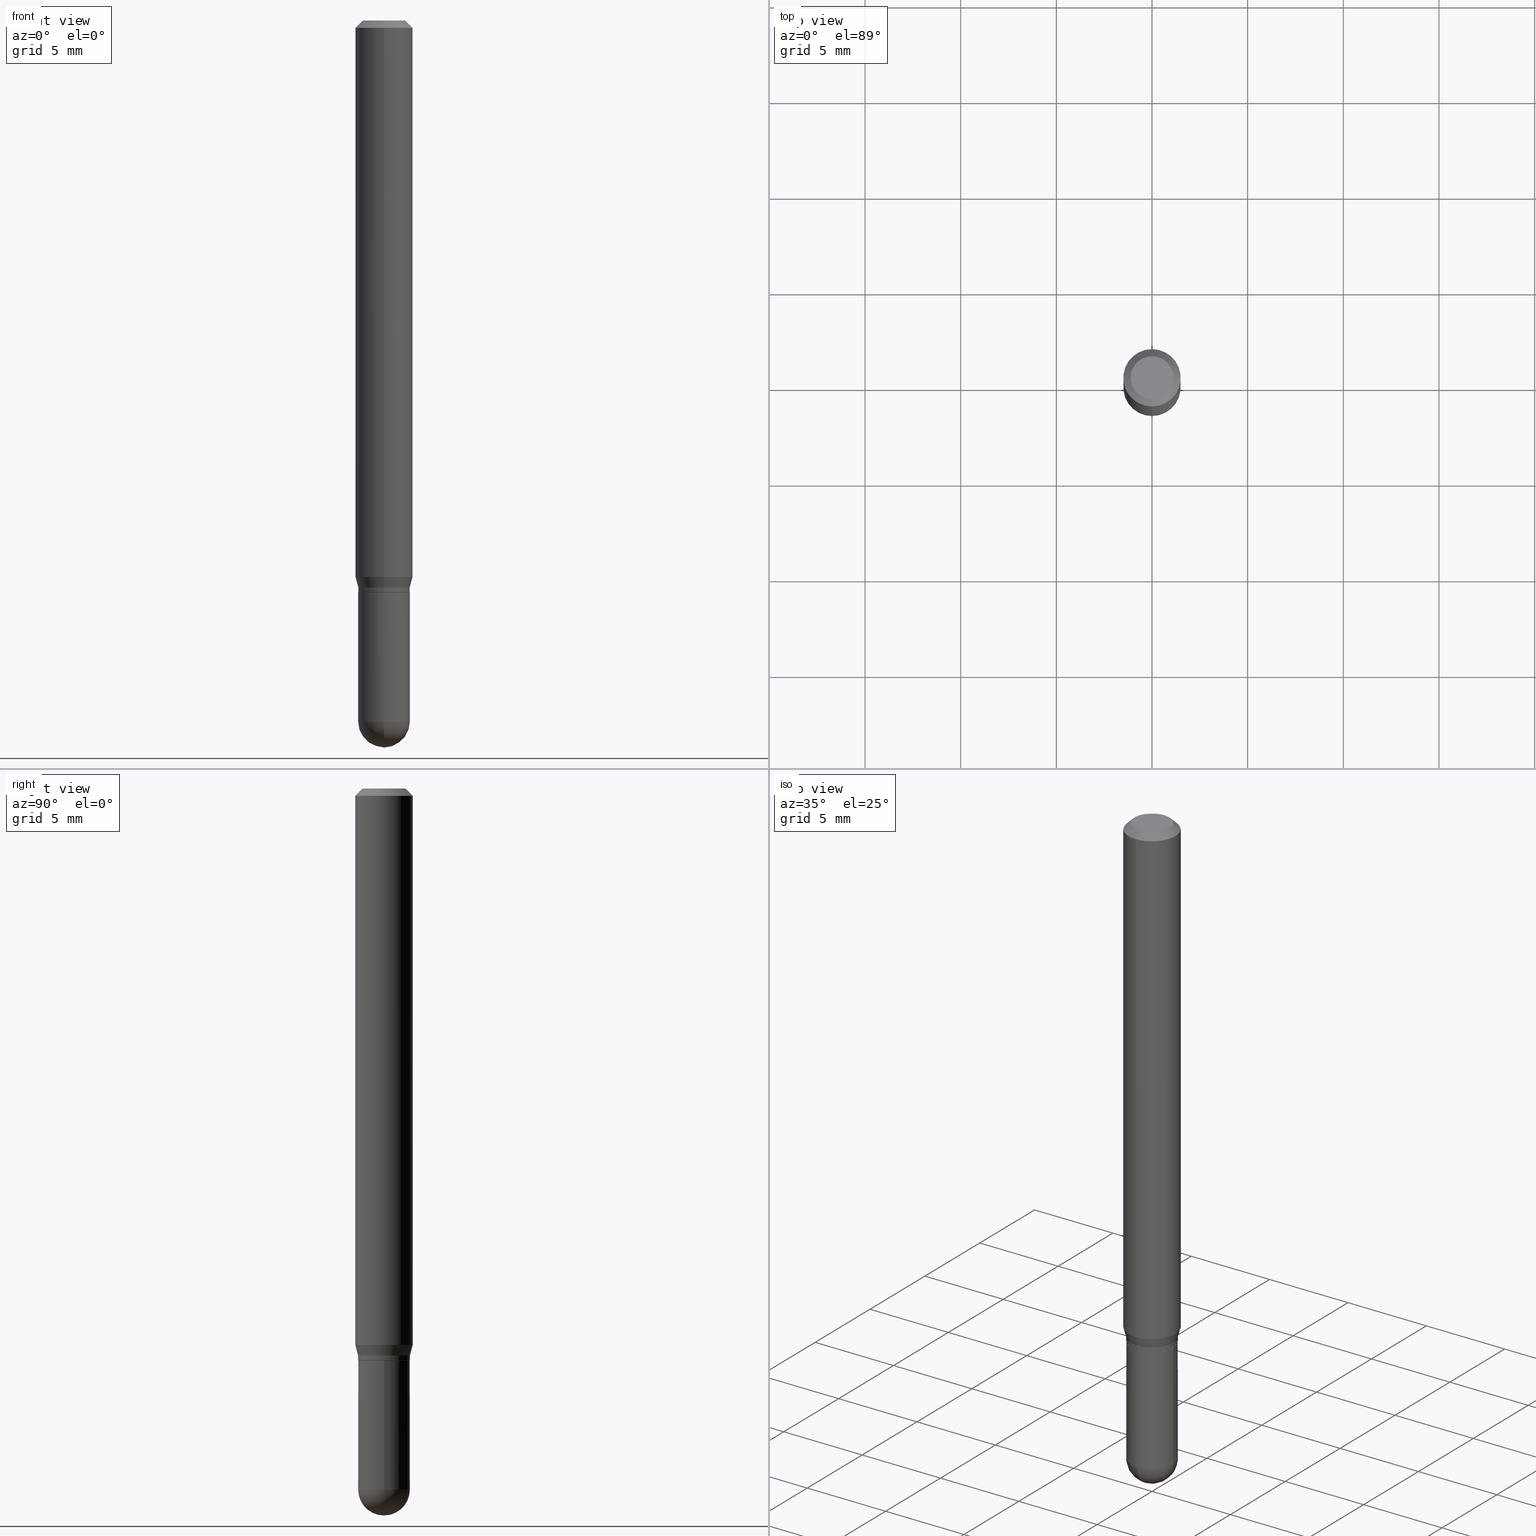
[diagram: canonical four-view strip — front | top / right | iso, engineering-drawing reading convention]
A machine part, canonical four-view strip (front | top / right | iso — engineering-drawing reading convention). The complete STEP part file that produces these views, byte-faithful:
ISO-10303-21;
HEADER;
FILE_DESCRIPTION (( 'STEP AP203' ),
    '1' );
FILE_NAME ('01996.STEP',
    '2024-03-07T19:53:33',
    ( '' ),
    ( '' ),
    'SwSTEP 2.0',
    'SolidWorks 2023',
    '' );
FILE_SCHEMA (( 'CONFIG_CONTROL_DESIGN' ));
ENDSEC;

DATA;
#1 = DIRECTION ( 'NONE',  ( 1.000000000000000000, -6.982962677686260400E-15, 0.000000000000000000 ) ) ;
#2 = CARTESIAN_POINT ( 'NONE',  ( 0.05315000000000000280, -4.481316298405176366E-15, -1.177200000000000024 ) ) ;
#3 = CARTESIAN_POINT ( 'NONE',  ( 0.000000000000000000, 0.000000000000000000, 0.000000000000000000 ) ) ;
#4 = DIRECTION ( 'NONE',  ( 1.000000000000000000, -6.982962677686269077E-15, 0.000000000000000000 ) ) ;
#5 = ORIENTED_EDGE ( 'NONE', *, *, #402, .T. ) ;
#6 = ORIENTED_EDGE ( 'NONE', *, *, #191, .F. ) ;
#7 = CIRCLE ( 'NONE', #236, 0.05315000000000005831 ) ;
#8 = CARTESIAN_POINT ( 'NONE',  ( 3.524144005057854329E-29, -5.044541995621184733E-15, -1.442949999999999955 ) ) ;
#9 = FACE_OUTER_BOUND ( 'NONE', #307, .T. ) ;
#10 = ORIENTED_EDGE ( 'NONE', *, *, #267, .F. ) ;
#11 = ORIENTED_EDGE ( 'NONE', *, *, #389, .F. ) ;
#12 = CC_DESIGN_PERSON_AND_ORGANIZATION_ASSIGNMENT ( #479, #153, ( #111 ) ) ;
#13 = LINE ( 'NONE', #328, #105 ) ;
#14 = FACE_OUTER_BOUND ( 'NONE', #148, .T. ) ;
#15 = CARTESIAN_POINT ( 'NONE',  ( 3.711444663190538628E-16, 0.05314999999999589497, -1.177200000000000024 ) ) ;
#16 = DIRECTION ( 'NONE',  ( -6.982962677686265922E-15, -1.000000000000000000, 4.626330217890369336E-15 ) ) ;
#17 = AXIS2_PLACEMENT_3D ( 'NONE', #8, #209, #129 ) ;
#18 = CARTESIAN_POINT ( 'NONE',  ( 0.000000000000000000, 0.000000000000000000, 0.000000000000000000 ) ) ;
#19 = ORIENTED_EDGE ( 'NONE', *, *, #279, .F. ) ;
#20 = DATE_AND_TIME ( #178, #361 ) ;
#21 = CARTESIAN_POINT ( 'NONE',  ( 2.800552248916751632E-29, -3.998308889543198540E-15, -1.145180900235343913 ) ) ;
#22 = CARTESIAN_POINT ( 'NONE',  ( -4.123439461173736383E-16, -0.05905000000000005383, -0.01499999999999981730 ) ) ;
#23 = APPROVAL_DATE_TIME ( #127, #464 ) ;
#24 = ORIENTED_EDGE ( 'NONE', *, *, #419, .T. ) ;
#25 = AXIS2_PLACEMENT_3D ( 'NONE', #386, #231, #462 ) ;
#26 = DIRECTION ( 'NONE',  ( -6.982962677686266711E-15, -1.000000000000000000, 2.569941668545870409E-15 ) ) ;
#27 = CARTESIAN_POINT ( 'NONE',  ( 0.05315000000000000280, -4.945246881303958097E-15, -1.442949999999999955 ) ) ;
#28 = AXIS2_PLACEMENT_3D ( 'NONE', #400, #199, #476 ) ;
#29 = CARTESIAN_POINT ( 'NONE',  ( 3.668266186164849471E-31, -5.237131821777922315E-17, -0.01500000000000002373 ) ) ;
#30 = ORIENTED_EDGE ( 'NONE', *, *, #439, .T. ) ;
#31 = LOCAL_TIME ( 14, 53, 33.00000000000000000, #332 ) ;
#32 = CARTESIAN_POINT ( 'NONE',  ( 3.741007503777215087E-16, 0.05264999999999589453, -1.177200000000000024 ) ) ;
#33 = DIRECTION ( 'NONE',  ( -2.445510790776562624E-29, 3.491421214518609091E-15, 1.000000000000000000 ) ) ;
#34 = VERTEX_POINT ( 'NONE', #404 ) ;
#35 = EDGE_CURVE ( 'NONE', #315, #223, #284, .T. ) ;
#36 = ORIENTED_EDGE ( 'NONE', *, *, #35, .T. ) ;
#37 = MECHANICAL_CONTEXT ( 'NONE', #309, 'mechanical' ) ;
#38 = CIRCLE ( 'NONE', #98, 0.05315000000000000280 ) ;
#39 = CIRCLE ( 'NONE', #172, 0.05904999999999999832 ) ;
#40 = ADVANCED_FACE ( 'NONE', ( #358 ), #48, .T. ) ;
#41 = CARTESIAN_POINT ( 'NONE',  ( -3.711444663189892255E-16, -0.05315000000000497105, -1.442949999999999733 ) ) ;
#42 = ORIENTED_EDGE ( 'NONE', *, *, #350, .T. ) ;
#43 = FACE_OUTER_BOUND ( 'NONE', #57, .T. ) ;
#44 = ORIENTED_EDGE ( 'NONE', *, *, #363, .T. ) ;
#45 = DIRECTION ( 'NONE',  ( -2.445468806185136597E-29, 3.491481338843145583E-15, 1.000000000000000000 ) ) ;
#46 = CARTESIAN_POINT ( 'NONE',  ( 2.854400194994403240E-29, -4.075186841586120455E-15, -1.167200000000000015 ) ) ;
#47 = ADVANCED_FACE ( 'NONE', ( #9 ), #168, .T. ) ;
#48 = CYLINDRICAL_SURFACE ( 'NONE', #270, 0.05904999999999999832 ) ;
#49 = CIRCLE ( 'NONE', #396, 0.05315000000000005831 ) ;
#50 = ORIENTED_EDGE ( 'NONE', *, *, #456, .F. ) ;
#51 = ORIENTED_EDGE ( 'NONE', *, *, #424, .F. ) ;
#52 = APPROVAL_PERSON_ORGANIZATION ( #291, #510, #333 ) ;
#53 = APPROVAL_ROLE ( '' ) ;
#54 = APPLICATION_CONTEXT ( 'configuration controlled 3d designs of mechanical parts and assemblies' ) ;
#55 = DIRECTION ( 'NONE',  ( -6.982962677686265922E-15, -1.000000000000000000, 3.491421214518609486E-15 ) ) ;
#56 = DIRECTION ( 'NONE',  ( 1.839019923739607415E-15, 0.2588190451025259575, 0.9659258262890667579 ) ) ;
#57 = EDGE_LOOP ( 'NONE', ( #140, #473, #248, #323, #36 ) ) ;
#58 = CARTESIAN_POINT ( 'NONE',  ( 3.776534640565222100E-16, 0.05314999999999599212, -1.167200000000000015 ) ) ;
#59 = DIRECTION ( 'NONE',  ( -2.445510790776562624E-29, 3.491421214518609091E-15, 1.000000000000000000 ) ) ;
#60 = CARTESIAN_POINT ( 'NONE',  ( 2.854400194994403240E-29, -4.075186841586120455E-15, -1.167200000000000015 ) ) ;
#61 = FACE_OUTER_BOUND ( 'NONE', #471, .T. ) ;
#62 = VECTOR ( 'NONE', #409, 39.37007874015748143 ) ;
#63 = CC_DESIGN_APPROVAL ( #103, ( #427 ) ) ;
#64 = CC_DESIGN_APPROVAL ( #464, ( #108 ) ) ;
#65 = DIRECTION ( 'NONE',  ( 7.105427357601001070E-15, 1.000000000000000000, 0.000000000000000000 ) ) ;
#66 = DIRECTION ( 'NONE',  ( -2.445510790776562624E-29, 3.491421214518609091E-15, 1.000000000000000000 ) ) ;
#67 = DIRECTION ( 'NONE',  ( -6.982962677686265922E-15, -1.000000000000000000, 2.594347572330734199E-15 ) ) ;
#68 = CC_DESIGN_PERSON_AND_ORGANIZATION_ASSIGNMENT ( #368, #412, ( #108 ) ) ;
#69 = CONICAL_SURFACE ( 'NONE', #477, 0.05315000000000005831, 0.2617993877991513507 ) ;
#70 = DIRECTION ( 'NONE',  ( -1.000000000000000000, 6.982962677686265922E-15, -4.883557194083112340E-29 ) ) ;
#71 = ORGANIZATION ( 'UNSPECIFIED', 'UNSPECIFIED', '' ) ;
#72 = LINE ( 'NONE', #500, #392 ) ;
#73 = CARTESIAN_POINT ( 'NONE',  ( 0.000000000000000000, 0.000000000000000000, 0.000000000000000000 ) ) ;
#74 = DIRECTION ( 'NONE',  ( -2.445510790776562624E-29, 3.491421214518609091E-15, 1.000000000000000000 ) ) ;
#75 = AXIS2_PLACEMENT_3D ( 'NONE', #394, #262, #341 ) ;
#76 = ORIENTED_EDGE ( 'NONE', *, *, #212, .T. ) ;
#77 = VERTEX_POINT ( 'NONE', #413 ) ;
#78 = CARTESIAN_POINT ( 'NONE',  ( 2.878805878641142370E-29, -4.110171832086151297E-15, -1.177200000000000024 ) ) ;
#79 = CYLINDRICAL_SURFACE ( 'NONE', #455, 0.05315000000000005831 ) ;
#80 = ORIENTED_EDGE ( 'NONE', *, *, #293, .F. ) ;
#81 = CC_DESIGN_PERSON_AND_ORGANIZATION_ASSIGNMENT ( #493, #88, ( #263 ) ) ;
#82 = DIRECTION ( 'NONE',  ( 1.000000000000000000, -6.982962677686260400E-15, 0.000000000000000000 ) ) ;
#83 = DIRECTION ( 'NONE',  ( 4.937700262164548042E-15, 0.7071067811865451302, -0.7071067811865499042 ) ) ;
#84 = VERTEX_POINT ( 'NONE', #22 ) ;
#85 = ORIENTED_EDGE ( 'NONE', *, *, #383, .T. ) ;
#86 = DIRECTION ( 'NONE',  ( -6.982962677686266711E-15, -1.000000000000000000, 2.569941668545870409E-15 ) ) ;
#87 = EDGE_LOOP ( 'NONE', ( #203, #171, #24, #145 ) ) ;
#88 = PERSON_AND_ORGANIZATION_ROLE ( 'classification_officer' ) ;
#89 = DIRECTION ( 'NONE',  ( -4.851104656540964275E-15, -0.7071067811865500152, -0.7071067811865450192 ) ) ;
#90 = ADVANCED_FACE ( 'NONE', ( #61 ), #506, .T. ) ;
#91 = EDGE_CURVE ( 'NONE', #369, #365, #49, .T. ) ;
#92 = PERSON_AND_ORGANIZATION ( #430, #71 ) ;
#93 = VECTOR ( 'NONE', #56, 39.37007874015748854 ) ;
#94 = PERSON_AND_ORGANIZATION_ROLE ( 'creator' ) ;
#95 = EDGE_CURVE ( 'NONE', #84, #481, #444, .T. ) ;
#96 = CARTESIAN_POINT ( 'NONE',  ( 2.878855302902169312E-29, -4.110101053731306636E-15, -1.177200000000000024 ) ) ;
#97 = CLOSED_SHELL ( 'NONE', ( #503, #292, #269, #143, #405 ) ) ;
#98 = AXIS2_PLACEMENT_3D ( 'NONE', #146, #468, #1 ) ;
#99 = AXIS2_PLACEMENT_3D ( 'NONE', #255, #104, #222 ) ;
#100 = DIRECTION ( 'NONE',  ( -6.982962677686266711E-15, -1.000000000000000000, 2.569941668545870409E-15 ) ) ;
#101 = CARTESIAN_POINT ( 'NONE',  ( 3.986144747614447305E-16, 0.05314999999999599212, -1.167200000000000015 ) ) ;
#102 = DIRECTION ( 'NONE',  ( -2.445510790776562624E-29, 3.491421214518609091E-15, 1.000000000000000000 ) ) ;
#103 = APPROVAL ( #382, 'UNSPECIFIED' ) ;
#104 = DIRECTION ( 'NONE',  ( 1.000000000000000000, -6.982962677686265922E-15, 4.883557194083112340E-29 ) ) ;
#105 = VECTOR ( 'NONE', #452, 39.37007874015748143 ) ;
#106 = FACE_OUTER_BOUND ( 'NONE', #484, .T. ) ;
#107 = ORIENTED_EDGE ( 'NONE', *, *, #35, .F. ) ;
#108 = PRODUCT_DEFINITION ( 'UNKNOWN', '', #427, #367 ) ;
#109 = CARTESIAN_POINT ( 'NONE',  ( 2.878855302902169312E-29, -4.110101053731306636E-15, -1.177200000000000024 ) ) ;
#110 = ORIENTED_EDGE ( 'NONE', *, *, #149, .T. ) ;
#111 = PRODUCT ( '01996', '01996', '', ( #37 ) ) ;
#112 = CARTESIAN_POINT ( 'NONE',  ( 0.000000000000000000, 0.000000000000000000, 0.000000000000000000 ) ) ;
#113 = CARTESIAN_POINT ( 'NONE',  ( -3.676529849801530716E-16, -0.05265000000000411018, -1.177199999999999802 ) ) ;
#114 = CARTESIAN_POINT ( 'NONE',  ( 4.123439461173743285E-16, 0.05904999999999994975, -0.01500000000000023016 ) ) ;
#115 = AXIS2_PLACEMENT_3D ( 'NONE', #96, #393, #67 ) ;
#116 = EDGE_LOOP ( 'NONE', ( #204, #160, #202, #11 ) ) ;
#117 = ORIENTED_EDGE ( 'NONE', *, *, #383, .F. ) ;
#118 = APPLICATION_PROTOCOL_DEFINITION ( 'international standard', 'config_control_design', 1994, #54 ) ;
#119 = DIRECTION ( 'NONE',  ( -2.445510790776562624E-29, 3.491421214518609091E-15, 1.000000000000000000 ) ) ;
#120 = DIRECTION ( 'NONE',  ( -2.445510790776562904E-29, 3.491421214518609091E-15, 1.000000000000000000 ) ) ;
#121 = ORIENTED_EDGE ( 'NONE', *, *, #279, .T. ) ;
#122 = EDGE_CURVE ( 'NONE', #364, #34, #391, .T. ) ;
#123 = EDGE_CURVE ( 'NONE', #449, #315, #38, .T. ) ;
#124 = DIRECTION ( 'NONE',  ( 1.000000000000000000, -6.982962677686260400E-15, 0.000000000000000000 ) ) ;
#125 = VERTEX_POINT ( 'NONE', #310 ) ;
#126 = ORIENTED_EDGE ( 'NONE', *, *, #389, .T. ) ;
#127 = DATE_AND_TIME ( #252, #285 ) ;
#128 = AXIS2_PLACEMENT_3D ( 'NONE', #469, #33, #100 ) ;
#129 = DIRECTION ( 'NONE',  ( -6.982962677686265922E-15, -1.000000000000000000, 5.139883337091761328E-15 ) ) ;
#130 = CALENDAR_DATE ( 2024, 7, 3 ) ;
#131 = EDGE_CURVE ( 'NONE', #505, #449, #157, .T. ) ;
#132 = PLANE ( 'NONE',  #360 ) ;
#133 = DATE_TIME_ROLE ( 'classification_date' ) ;
#134 = DIRECTION ( 'NONE',  ( 6.982962677686265922E-15, 1.000000000000000000, -3.505890868245046092E-15 ) ) ;
#135 = AXIS2_PLACEMENT_3D ( 'NONE', #366, #166, #317 ) ;
#136 = ADVANCED_FACE ( 'NONE', ( #14 ), #324, .F. ) ;
#137 = APPROVAL_DATE_TIME ( #454, #510 ) ;
#138 = CARTESIAN_POINT ( 'NONE',  ( -3.711444663189969169E-16, -0.05315000000000413144, -1.167199999999999793 ) ) ;
#139 = CARTESIAN_POINT ( 'NONE',  ( 0.000000000000000000, 0.000000000000000000, 0.000000000000000000 ) ) ;
#140 = ORIENTED_EDGE ( 'NONE', *, *, #456, .T. ) ;
#141 = APPROVAL_PERSON_ORGANIZATION ( #508, #464, #210 ) ;
#142 = CARTESIAN_POINT ( 'NONE',  ( -3.711444663189969169E-16, -0.05315000000000413144, -1.167199999999999793 ) ) ;
#143 = ADVANCED_FACE ( 'NONE', ( #321 ), #491, .T. ) ;
#144 = DIRECTION ( 'NONE',  ( -6.982962677686265922E-15, -1.000000000000000000, 3.491421214518609486E-15 ) ) ;
#145 = ORIENTED_EDGE ( 'NONE', *, *, #240, .F. ) ;
#146 = CARTESIAN_POINT ( 'NONE',  ( 3.528689213884843040E-29, -5.038032997883716336E-15, -1.442949999999999955 ) ) ;
#147 = DIRECTION ( 'NONE',  ( -6.982962677686265922E-15, -1.000000000000000000, 0.000000000000000000 ) ) ;
#148 = EDGE_LOOP ( 'NONE', ( #42, #486 ) ) ;
#149 = EDGE_CURVE ( 'NONE', #125, #84, #215, .T. ) ;
#150 = ADVANCED_FACE ( 'NONE', ( #250 ), #376, .T. ) ;
#151 = CARTESIAN_POINT ( 'NONE',  ( -3.676529849801530716E-16, -0.05265000000000411018, -1.177199999999999802 ) ) ;
#152 = CARTESIAN_POINT ( 'NONE',  ( 3.599717260347271507E-16, 0.04404999999999999888, -1.776619958574267204E-16 ) ) ;
#153 = PERSON_AND_ORGANIZATION_ROLE ( 'design_owner' ) ;
#154 = ORIENTED_EDGE ( 'NONE', *, *, #402, .F. ) ;
#155 = FACE_OUTER_BOUND ( 'NONE', #159, .T. ) ;
#156 = FACE_OUTER_BOUND ( 'NONE', #406, .T. ) ;
#157 = CIRCLE ( 'NONE', #461, 0.05315000000000000280 ) ;
#158 = VECTOR ( 'NONE', #390, 39.37007874015748854 ) ;
#159 = EDGE_LOOP ( 'NONE', ( #249, #435, #121, #433 ) ) ;
#160 = ORIENTED_EDGE ( 'NONE', *, *, #480, .T. ) ;
#161 = LENGTH_MEASURE_WITH_UNIT ( LENGTH_MEASURE( 0.02539999999999999897 ), #357 );
#162 = LINE ( 'NONE', #441, #62 ) ;
#163 = ORIENTED_EDGE ( 'NONE', *, *, #123, .F. ) ;
#164 = CALENDAR_DATE ( 2024, 7, 3 ) ;
#165 = CC_DESIGN_PERSON_AND_ORGANIZATION_ASSIGNMENT ( #446, #451, ( #427 ) ) ;
#166 = DIRECTION ( 'NONE',  ( 2.445510790776562344E-29, -3.491421214518609091E-15, -1.000000000000000000 ) ) ;
#167 = COORDINATED_UNIVERSAL_TIME_OFFSET ( 5, 0, .BEHIND. ) ;
#168 = CONICAL_SURFACE ( 'NONE', #377, 0.05904999999999999832, 0.7853981633974483900 ) ;
#169 = DIRECTION ( 'NONE',  ( -1.000000000000000000, 6.982962677686265922E-15, -4.876176775795935793E-29 ) ) ;
#170 = CIRCLE ( 'NONE', #398, 0.05314999999999985014 ) ;
#171 = ORIENTED_EDGE ( 'NONE', *, *, #91, .T. ) ;
#172 = AXIS2_PLACEMENT_3D ( 'NONE', #29, #470, #440 ) ;
#173 = DIRECTION ( 'NONE',  ( -2.445468806185136597E-29, 3.491481338843145583E-15, 1.000000000000000000 ) ) ;
#174 = APPROVAL_DATE_TIME ( #20, #103 ) ;
#175 = APPROVAL_STATUS ( 'not_yet_approved' ) ;
#176 = ORIENTED_EDGE ( 'NONE', *, *, #497, .T. ) ;
#177 = DIRECTION ( 'NONE',  ( -6.982962677686266711E-15, -1.000000000000000000, 3.491421214518609486E-15 ) ) ;
#178 = CALENDAR_DATE ( 2024, 7, 3 ) ;
#179 = VECTOR ( 'NONE', #188, 39.37007874015748143 ) ;
#180 = CIRCLE ( 'NONE', #421, 0.05315000000000000280 ) ;
#181 = LOCAL_TIME ( 14, 53, 33.00000000000000000, #495 ) ;
#182 = CARTESIAN_POINT ( 'NONE',  ( 3.524144005057854329E-29, -5.044541995621184733E-15, -1.442949999999999955 ) ) ;
#183 = DIRECTION ( 'NONE',  ( -2.445468806185136597E-29, 3.491481338843145583E-15, 1.000000000000000000 ) ) ;
#184 = CARTESIAN_POINT ( 'NONE',  ( 3.668266186164849471E-31, -5.237131821777922315E-17, -0.01500000000000002373 ) ) ;
#185 = CIRCLE ( 'NONE', #228, 0.05315000000000005831 ) ;
#186 = AXIS2_PLACEMENT_3D ( 'NONE', #109, #443, #353 ) ;
#187 = DIRECTION ( 'NONE',  ( 2.445510790776562624E-29, -3.491421214518609091E-15, -1.000000000000000000 ) ) ;
#188 = DIRECTION ( 'NONE',  ( 5.024295867788190974E-15, 0.7071067811865681119, 0.7071067811865270336 ) ) ;
#189 = CARTESIAN_POINT ( 'NONE',  ( 2.878855302902169312E-29, -4.110101053731306636E-15, -1.177200000000000024 ) ) ;
#190 = EDGE_LOOP ( 'NONE', ( #117, #208, #107, #163 ) ) ;
#191 = EDGE_CURVE ( 'NONE', #512, #304, #414, .T. ) ;
#192 =( NAMED_UNIT ( * ) SI_UNIT ( $, .STERADIAN. ) SOLID_ANGLE_UNIT ( ) );
#193 = CLOSED_SHELL ( 'NONE', ( #150, #90, #330, #40, #301, #239, #316, #47, #136, #347, #509, #290 ) ) ;
#194 = AXIS2_PLACEMENT_3D ( 'NONE', #184, #187, #232 ) ;
#195 = CC_DESIGN_APPROVAL ( #510, ( #263 ) ) ;
#196 = CARTESIAN_POINT ( 'NONE',  ( 2.878855302902169312E-29, -4.110101053731306636E-15, -1.177200000000000024 ) ) ;
#197 = CARTESIAN_POINT ( 'NONE',  ( 4.195754854663390985E-16, 0.05904999999999999832, -2.061684227173238760E-16 ) ) ;
#198 = ORIENTED_EDGE ( 'NONE', *, *, #336, .F. ) ;
#199 = DIRECTION ( 'NONE',  ( -2.445510790776562624E-29, 3.491421214518609091E-15, 1.000000000000000000 ) ) ;
#200 = EDGE_CURVE ( 'NONE', #512, #364, #415, .T. ) ;
#201 = DIRECTION ( 'NONE',  ( 1.000000000000000000, -6.982962677686267499E-15, 4.876176775795935232E-29 ) ) ;
#202 = ORIENTED_EDGE ( 'NONE', *, *, #95, .F. ) ;
#203 = ORIENTED_EDGE ( 'NONE', *, *, #256, .F. ) ;
#204 = ORIENTED_EDGE ( 'NONE', *, *, #293, .T. ) ;
#205 = AXIS2_PLACEMENT_3D ( 'NONE', #21, #59, #16 ) ;
#206 = AXIS2_PLACEMENT_3D ( 'NONE', #226, #339, #498 ) ;
#207 = EDGE_LOOP ( 'NONE', ( #265, #76, #448, #19 ) ) ;
#208 = ORIENTED_EDGE ( 'NONE', *, *, #345, .T. ) ;
#209 = DIRECTION ( 'NONE',  ( 1.000000000000000000, -6.982962677686265922E-15, 4.883557194083112340E-29 ) ) ;
#210 = APPROVAL_ROLE ( '' ) ;
#211 = DIRECTION ( 'NONE',  ( 2.438088387897960049E-29, -3.491481338843145188E-15, -1.000000000000000000 ) ) ;
#212 = EDGE_CURVE ( 'NONE', #34, #369, #275, .T. ) ;
#213 = DIRECTION ( 'NONE',  ( 1.000000000000000000, -6.982962677686260400E-15, 0.000000000000000000 ) ) ;
#214 = DIRECTION ( 'NONE',  ( -2.445510790776562624E-29, 3.491421214518609091E-15, 1.000000000000000000 ) ) ;
#215 = LINE ( 'NONE', #450, #325 ) ;
#216 = AXIS2_PLACEMENT_3D ( 'NONE', #18, #219, #177 ) ;
#217 = DIRECTION ( 'NONE',  ( -2.445510790776562624E-29, 3.491421214518609091E-15, 1.000000000000000000 ) ) ;
#218 =( GEOMETRIC_REPRESENTATION_CONTEXT ( 3 ) GLOBAL_UNCERTAINTY_ASSIGNED_CONTEXT ( ( #381 ) ) GLOBAL_UNIT_ASSIGNED_CONTEXT ( ( #266, #312, #192 ) ) REPRESENTATION_CONTEXT ( 'NONE', 'WORKASPACE' ) );
#219 = DIRECTION ( 'NONE',  ( -2.445510790776562624E-29, 3.491421214518609091E-15, 1.000000000000000000 ) ) ;
#220 = EDGE_CURVE ( 'NONE', #474, #431, #453, .T. ) ;
#221 = CIRCLE ( 'NONE', #507, 0.05315000000000005831 ) ;
#222 = DIRECTION ( 'NONE',  ( -6.982962677686265922E-15, -1.000000000000000000, 5.139883337091761328E-15 ) ) ;
#223 = VERTEX_POINT ( 'NONE', #277 ) ;
#224 = EDGE_CURVE ( 'NONE', #505, #431, #162, .T. ) ;
#225 = DIRECTION ( 'NONE',  ( 1.000000000000000000, -6.982962677686269077E-15, 0.000000000000000000 ) ) ;
#226 = CARTESIAN_POINT ( 'NONE',  ( 5.836184933641082622E-46, -8.332238796909111548E-32, -2.386489135788202439E-17 ) ) ;
#227 = CARTESIAN_POINT ( 'NONE',  ( 2.854400194994403240E-29, -4.075186841586120455E-15, -1.167200000000000015 ) ) ;
#228 = AXIS2_PLACEMENT_3D ( 'NONE', #372, #214, #86 ) ;
#229 = CIRCLE ( 'NONE', #115, 0.05265000000000000235 ) ;
#230 = PRODUCT_RELATED_PRODUCT_CATEGORY ( 'detail', '', ( #111 ) ) ;
#231 = DIRECTION ( 'NONE',  ( -2.445510790776562624E-29, 3.491421214518609091E-15, 1.000000000000000000 ) ) ;
#232 = DIRECTION ( 'NONE',  ( 6.982962677686265922E-15, 1.000000000000000000, -3.505890868245046092E-15 ) ) ;
#233 = DIRECTION ( 'NONE',  ( 0.000000000000000000, 0.000000000000000000, 1.000000000000000000 ) ) ;
#234 = ORIENTED_EDGE ( 'NONE', *, *, #497, .F. ) ;
#235 = MANIFOLD_SOLID_BREP ( 'Body-Move/Copy2[1]', #97 ) ;
#236 = AXIS2_PLACEMENT_3D ( 'NONE', #46, #472, #429 ) ;
#237 = CARTESIAN_POINT ( 'NONE',  ( -0.05315000000000000280, -4.196448950928440351E-15, -1.177200000000000024 ) ) ;
#238 = CC_DESIGN_SECURITY_CLASSIFICATION ( #263, ( #427 ) ) ;
#239 = ADVANCED_FACE ( 'NONE', ( #289 ), #69, .T. ) ;
#240 = EDGE_CURVE ( 'NONE', #77, #268, #334, .T. ) ;
#241 = DIRECTION ( 'NONE',  ( 1.000000000000000000, 0.000000000000000000, 0.000000000000000000 ) ) ;
#242 = EDGE_LOOP ( 'NONE', ( #259, #356, #80, #286 ) ) ;
#243 = LINE ( 'NONE', #114, #247 ) ;
#244 = EDGE_LOOP ( 'NONE', ( #313, #44 ) ) ;
#245 = FACE_OUTER_BOUND ( 'NONE', #190, .T. ) ;
#246 = DIRECTION ( 'NONE',  ( -2.445468806185136597E-29, 3.491481338843145583E-15, 1.000000000000000000 ) ) ;
#247 = VECTOR ( 'NONE', #83, 39.37007874015748143 ) ;
#248 = ORIENTED_EDGE ( 'NONE', *, *, #220, .F. ) ;
#249 = ORIENTED_EDGE ( 'NONE', *, *, #212, .F. ) ;
#250 = FACE_OUTER_BOUND ( 'NONE', #207, .T. ) ;
#251 = DIMENSIONAL_EXPONENTS ( 1.000000000000000000, 0.000000000000000000, 0.000000000000000000, 0.000000000000000000, 0.000000000000000000, 0.000000000000000000, 0.000000000000000000 ) ;
#252 = CALENDAR_DATE ( 2024, 7, 3 ) ;
#253 = AXIS2_PLACEMENT_3D ( 'NONE', #483, #246, #124 ) ;
#254 = CC_DESIGN_DATE_AND_TIME_ASSIGNMENT ( #326, #133, ( #263 ) ) ;
#255 = CARTESIAN_POINT ( 'NONE',  ( 3.524144005057854329E-29, -5.044541995621184733E-15, -1.442949999999999955 ) ) ;
#256 = EDGE_CURVE ( 'NONE', #369, #77, #378, .T. ) ;
#257 = VECTOR ( 'NONE', #362, 39.37007874015748143 ) ;
#258 = CARTESIAN_POINT ( 'NONE',  ( -3.711444663189969662E-16, -0.05315000000000420777, -1.176699999999999857 ) ) ;
#259 = ORIENTED_EDGE ( 'NONE', *, *, #447, .T. ) ;
#260 = DIRECTION ( 'NONE',  ( -2.445510790776562624E-29, 3.491421214518609091E-15, 1.000000000000000000 ) ) ;
#261 = DIRECTION ( 'NONE',  ( -6.982962677686265922E-15, -1.000000000000000000, 3.505890868245046092E-15 ) ) ;
#262 = DIRECTION ( 'NONE',  ( -2.445510790776562624E-29, 3.491421214518609091E-15, 1.000000000000000000 ) ) ;
#263 = SECURITY_CLASSIFICATION ( '', '', #418 ) ;
#264 = SPHERICAL_SURFACE ( 'NONE', #99, 0.05314999999999985014 ) ;
#265 = ORIENTED_EDGE ( 'NONE', *, *, #336, .T. ) ;
#266 =( CONVERSION_BASED_UNIT ( 'INCH', #161 ) LENGTH_UNIT ( ) NAMED_UNIT ( #251 ) );
#267 = EDGE_CURVE ( 'NONE', #34, #304, #185, .T. ) ;
#268 = VERTEX_POINT ( 'NONE', #287 ) ;
#269 = ADVANCED_FACE ( 'NONE', ( #489 ), #132, .F. ) ;
#270 = AXIS2_PLACEMENT_3D ( 'NONE', #3, #119, #55 ) ;
#271 = AXIS2_PLACEMENT_3D ( 'NONE', #504, #70, #147 ) ;
#272 = CARTESIAN_POINT ( 'NONE',  ( -0.05315000000000000280, -4.196448950928440351E-15, -1.442949999999999955 ) ) ;
#273 = ORIENTED_EDGE ( 'NONE', *, *, #191, .T. ) ;
#274 = ORIENTED_EDGE ( 'NONE', *, *, #122, .F. ) ;
#275 = LINE ( 'NONE', #437, #499 ) ;
#276 = DIRECTION ( 'NONE',  ( -2.445510790776562904E-29, 3.491421214518609091E-15, 1.000000000000000000 ) ) ;
#277 = CARTESIAN_POINT ( 'NONE',  ( 3.776534640565279785E-16, 0.05314999999999488189, -1.442950000000000177 ) ) ;
#278 = ORIENTED_EDGE ( 'NONE', *, *, #131, .T. ) ;
#279 = EDGE_CURVE ( 'NONE', #304, #365, #13, .T. ) ;
#280 = CARTESIAN_POINT ( 'NONE',  ( 4.195754854663672510E-16, 0.05904999999999994281, -0.01500000000000023016 ) ) ;
#281 = DIRECTION ( 'NONE',  ( 2.445510790776562624E-29, -3.491421214518609091E-15, -1.000000000000000000 ) ) ;
#282 = ORIENTED_EDGE ( 'NONE', *, *, #424, .T. ) ;
#283 = DATE_AND_TIME ( #130, #31 ) ;
#284 = CIRCLE ( 'NONE', #490, 0.05315000000000000280 ) ;
#285 = LOCAL_TIME ( 14, 53, 33.00000000000000000, #488 ) ;
#286 = ORIENTED_EDGE ( 'NONE', *, *, #419, .F. ) ;
#287 = CARTESIAN_POINT ( 'NONE',  ( -4.123439461173460774E-16, -0.05905000000000400207, -1.145180900235343913 ) ) ;
#288 = COORDINATED_UNIVERSAL_TIME_OFFSET ( 5, 0, .BEHIND. ) ;
#289 = FACE_OUTER_BOUND ( 'NONE', #87, .T. ) ;
#290 = ADVANCED_FACE ( 'NONE', ( #155 ), #79, .T. ) ;
#291 = PERSON_AND_ORGANIZATION ( #430, #71 ) ;
#292 = ADVANCED_FACE ( 'NONE', ( #245 ), #264, .T. ) ;
#293 = EDGE_CURVE ( 'NONE', #268, #77, #492, .T. ) ;
#294 = DIRECTION ( 'NONE',  ( 1.000000000000000000, -7.105427357601001070E-15, 4.926315508542082329E-29 ) ) ;
#295 = LINE ( 'NONE', #142, #158 ) ;
#296 = CONICAL_SURFACE ( 'NONE', #186, 0.05265000000000000235, 0.7853981633974739252 ) ;
#297 = CARTESIAN_POINT ( 'NONE',  ( 0.000000000000000000, 0.000000000000000000, 0.000000000000000000 ) ) ;
#298 = DIRECTION ( 'NONE',  ( -6.982962677686266711E-15, -1.000000000000000000, 2.569941668545870409E-15 ) ) ;
#299 = CYLINDRICAL_SURFACE ( 'NONE', #445, 0.05904999999999999832 ) ;
#300 = ORIENTED_EDGE ( 'NONE', *, *, #350, .F. ) ;
#301 = ADVANCED_FACE ( 'NONE', ( #420 ), #335, .T. ) ;
#302 = DIRECTION ( 'NONE',  ( -2.445510790776562904E-29, 3.491421214518609091E-15, 1.000000000000000000 ) ) ;
#303 = VECTOR ( 'NONE', #276, 39.37007874015748143 ) ;
#304 = VERTEX_POINT ( 'NONE', #258 ) ;
#305 = DIRECTION ( 'NONE',  ( -2.445468806185136597E-29, 3.491481338843145583E-15, 1.000000000000000000 ) ) ;
#306 = CARTESIAN_POINT ( 'NONE',  ( 0.000000000000000000, 0.000000000000000000, 0.000000000000000000 ) ) ;
#307 = EDGE_LOOP ( 'NONE', ( #373, #300, #176, #282 ) ) ;
#308 = AXIS2_PLACEMENT_3D ( 'NONE', #78, #45, #4 ) ;
#309 = APPLICATION_CONTEXT ( 'configuration controlled 3d designs of mechanical parts and assemblies' ) ;
#310 = CARTESIAN_POINT ( 'NONE',  ( -3.536586717851222218E-16, -0.04404999999999999888, 1.299322131416626839E-16 ) ) ;
#311 = AXIS2_PLACEMENT_3D ( 'NONE', #189, #425, #502 ) ;
#312 =( NAMED_UNIT ( * ) PLANE_ANGLE_UNIT ( ) SI_UNIT ( $, .RADIAN. ) );
#313 = ORIENTED_EDGE ( 'NONE', *, *, #220, .T. ) ;
#314 = EDGE_LOOP ( 'NONE', ( #482, #85, #319, #50 ) ) ;
#315 = VERTEX_POINT ( 'NONE', #27 ) ;
#316 = ADVANCED_FACE ( 'NONE', ( #467 ), #299, .T. ) ;
#317 = DIRECTION ( 'NONE',  ( 6.982962677686265922E-15, 1.000000000000000000, -3.491421214518609091E-15 ) ) ;
#318 = CYLINDRICAL_SURFACE ( 'NONE', #397, 0.05315000000000000280 ) ;
#319 = ORIENTED_EDGE ( 'NONE', *, *, #131, .F. ) ;
#320 = VERTEX_POINT ( 'NONE', #496 ) ;
#321 = FACE_OUTER_BOUND ( 'NONE', #314, .T. ) ;
#322 = APPROVAL_STATUS ( 'not_yet_approved' ) ;
#323 = ORIENTED_EDGE ( 'NONE', *, *, #439, .F. ) ;
#324 = PLANE ( 'NONE',  #135 ) ;
#325 = VECTOR ( 'NONE', #89, 39.37007874015748143 ) ;
#326 = DATE_AND_TIME ( #164, #343 ) ;
#327 = CIRCLE ( 'NONE', #206, 0.04404999999999999888 ) ;
#328 = CARTESIAN_POINT ( 'NONE',  ( -3.711444663190254638E-16, -0.05315000000000005831, 1.855690375516643020E-16 ) ) ;
#329 = CALENDAR_DATE ( 2024, 7, 3 ) ;
#330 = ADVANCED_FACE ( 'NONE', ( #422 ), #351, .T. ) ;
#331 = ORIENTED_EDGE ( 'NONE', *, *, #122, .T. ) ;
#332 = COORDINATED_UNIVERSAL_TIME_OFFSET ( 5, 0, .BEHIND. ) ;
#333 = APPROVAL_ROLE ( '' ) ;
#334 = CIRCLE ( 'NONE', #205, 0.05904999999999999832 ) ;
#335 = CONICAL_SURFACE ( 'NONE', #128, 0.05315000000000005831, 0.2617993877991513507 ) ;
#336 = EDGE_CURVE ( 'NONE', #304, #34, #221, .T. ) ;
#337 = FACE_OUTER_BOUND ( 'NONE', #442, .T. ) ;
#338 = ADVANCED_BREP_SHAPE_REPRESENTATION ( '01996', ( #235, #407, #384 ), #218 ) ;
#339 = DIRECTION ( 'NONE',  ( -2.445510790776562624E-29, 3.491421214518609091E-15, 1.000000000000000000 ) ) ;
#340 = ORIENTED_EDGE ( 'NONE', *, *, #95, .T. ) ;
#341 = DIRECTION ( 'NONE',  ( -6.982962677686265133E-15, -1.000000000000000000, 3.491421214518608697E-15 ) ) ;
#342 = DIRECTION ( 'NONE',  ( -2.445510790776562624E-29, 3.491421214518609091E-15, 1.000000000000000000 ) ) ;
#343 = LOCAL_TIME ( 14, 53, 33.00000000000000000, #167 ) ;
#344 = PLANE ( 'NONE',  #311 ) ;
#345 = EDGE_CURVE ( 'NONE', #320, #223, #170, .T. ) ;
#346 = DIRECTION ( 'NONE',  ( -2.445468806185136597E-29, 3.491481338843145583E-15, 1.000000000000000000 ) ) ;
#347 = ADVANCED_FACE ( 'NONE', ( #106 ), #344, .F. ) ;
#348 = ORIENTED_EDGE ( 'NONE', *, *, #363, .F. ) ;
#349 = AXIS2_PLACEMENT_3D ( 'NONE', #466, #102, #261 ) ;
#350 = EDGE_CURVE ( 'NONE', #438, #125, #417, .T. ) ;
#351 = CONICAL_SURFACE ( 'NONE', #194, 0.05904999999999999832, 0.7853981633974483900 ) ;
#352 = DIRECTION ( 'NONE',  ( -2.445510790776562624E-29, 3.491421214518609091E-15, 1.000000000000000000 ) ) ;
#353 = DIRECTION ( 'NONE',  ( -6.982962677686265922E-15, -1.000000000000000000, 2.594347572330734199E-15 ) ) ;
#354 = ORIENTED_EDGE ( 'NONE', *, *, #240, .T. ) ;
#355 = ORIENTED_EDGE ( 'NONE', *, *, #200, .T. ) ;
#356 = ORIENTED_EDGE ( 'NONE', *, *, #256, .T. ) ;
#357 =( LENGTH_UNIT ( ) NAMED_UNIT ( * ) SI_UNIT ( $, .METRE. ) );
#358 = FACE_OUTER_BOUND ( 'NONE', #116, .T. ) ;
#359 = DIRECTION ( 'NONE',  ( -4.937700262164674260E-15, -0.7071067811865632269, 0.7071067811865319186 ) ) ;
#360 = AXIS2_PLACEMENT_3D ( 'NONE', #15, #211, #169 ) ;
#361 = LOCAL_TIME ( 14, 53, 33.00000000000000000, #288 ) ;
#362 = DIRECTION ( 'NONE',  ( -2.445468806185136877E-29, 3.491481338843145188E-15, 1.000000000000000000 ) ) ;
#363 = EDGE_CURVE ( 'NONE', #431, #474, #180, .T. ) ;
#364 = VERTEX_POINT ( 'NONE', #426 ) ;
#365 = VERTEX_POINT ( 'NONE', #138 ) ;
#366 = CARTESIAN_POINT ( 'NONE',  ( 3.075995059520799729E-16, 0.04404999999999999888, -1.657295501784857359E-16 ) ) ;
#367 = DESIGN_CONTEXT ( 'detailed design', #54, 'design' ) ;
#368 = PERSON_AND_ORGANIZATION ( #430, #71 ) ;
#369 = VERTEX_POINT ( 'NONE', #101 ) ;
#370 = CARTESIAN_POINT ( 'NONE',  ( 3.528689213884843040E-29, -5.038032997883716336E-15, -1.442949999999999955 ) ) ;
#371 = CARTESIAN_POINT ( 'NONE',  ( 3.668266186164849471E-31, -5.237131821777922315E-17, -0.01500000000000002373 ) ) ;
#372 = CARTESIAN_POINT ( 'NONE',  ( 2.877632547506780813E-29, -4.108355343124046578E-15, -1.176699999999999857 ) ) ;
#373 = ORIENTED_EDGE ( 'NONE', *, *, #149, .F. ) ;
#374 = EDGE_LOOP ( 'NONE', ( #485, #354, #126, #51 ) ) ;
#375 = CC_DESIGN_PERSON_AND_ORGANIZATION_ASSIGNMENT ( #416, #94, ( #427 ) ) ;
#376 = CYLINDRICAL_SURFACE ( 'NONE', #216, 0.05315000000000005831 ) ;
#377 = AXIS2_PLACEMENT_3D ( 'NONE', #371, #281, #134 ) ;
#378 = LINE ( 'NONE', #58, #93 ) ;
#379 = DATE_TIME_ROLE ( 'creation_date' ) ;
#380 = DIRECTION ( 'NONE',  ( -6.982962677686266711E-15, -1.000000000000000000, 2.569941668545870409E-15 ) ) ;
#381 = UNCERTAINTY_MEASURE_WITH_UNIT (LENGTH_MEASURE( 1.000000000000000082E-05 ), #266, 'distance_accuracy_value', 'NONE');
#382 = APPROVAL_STATUS ( 'not_yet_approved' ) ;
#383 = EDGE_CURVE ( 'NONE', #320, #449, #463, .T. ) ;
#384 = AXIS2_PLACEMENT_3D ( 'NONE', #73, #233, #241 ) ;
#385 = DIRECTION ( 'NONE',  ( 1.000000000000000000, -6.982962677686267499E-15, 4.876176775795935232E-29 ) ) ;
#386 = CARTESIAN_POINT ( 'NONE',  ( 2.800552248916751632E-29, -3.998308889543198540E-15, -1.145180900235343913 ) ) ;
#387 = ORIENTED_EDGE ( 'NONE', *, *, #123, .T. ) ;
#388 = DIRECTION ( 'NONE',  ( -6.982962677686265922E-15, -1.000000000000000000, 2.594347572330734199E-15 ) ) ;
#389 = EDGE_CURVE ( 'NONE', #268, #84, #72, .T. ) ;
#390 = DIRECTION ( 'NONE',  ( -1.807323732225338028E-15, -0.2588190451025192407, 0.9659258262890687563 ) ) ;
#391 = LINE ( 'NONE', #32, #179 ) ;
#392 = VECTOR ( 'NONE', #302, 39.37007874015748143 ) ;
#393 = DIRECTION ( 'NONE',  ( -2.445510790776562624E-29, 3.491421214518609091E-15, 1.000000000000000000 ) ) ;
#394 = CARTESIAN_POINT ( 'NONE',  ( 5.836184933641082622E-46, -8.332238796909111548E-32, -2.386489135788202439E-17 ) ) ;
#395 = DIRECTION ( 'NONE',  ( -6.982962677686266711E-15, -1.000000000000000000, 3.491421214518609486E-15 ) ) ;
#396 = AXIS2_PLACEMENT_3D ( 'NONE', #227, #342, #298 ) ;
#397 = AXIS2_PLACEMENT_3D ( 'NONE', #112, #305, #201 ) ;
#398 = AXIS2_PLACEMENT_3D ( 'NONE', #182, #294, #65 ) ;
#399 = LINE ( 'NONE', #197, #303 ) ;
#400 = CARTESIAN_POINT ( 'NONE',  ( 2.878855302902169312E-29, -4.110101053731306636E-15, -1.177200000000000024 ) ) ;
#401 = LINE ( 'NONE', #475, #257 ) ;
#402 = EDGE_CURVE ( 'NONE', #364, #512, #229, .T. ) ;
#403 = ORIENTED_EDGE ( 'NONE', *, *, #411, .F. ) ;
#404 = CARTESIAN_POINT ( 'NONE',  ( 3.776534640565220621E-16, 0.05314999999999591579, -1.176700000000000079 ) ) ;
#405 = ADVANCED_FACE ( 'NONE', ( #337 ), #459, .T. ) ;
#406 = EDGE_LOOP ( 'NONE', ( #274, #5, #273, #10 ) ) ;
#407 = MANIFOLD_SOLID_BREP ( 'Body-Move/Copy2[2]', #193 ) ;
#408 = CARTESIAN_POINT ( 'NONE',  ( 3.528689213884843040E-29, -5.038032997883716336E-15, -1.442949999999999955 ) ) ;
#409 = DIRECTION ( 'NONE',  ( -2.445468806185136877E-29, 3.491481338843145188E-15, 1.000000000000000000 ) ) ;
#410 = ORIENTED_EDGE ( 'NONE', *, *, #200, .F. ) ;
#411 = EDGE_CURVE ( 'NONE', #125, #438, #327, .T. ) ;
#412 = PERSON_AND_ORGANIZATION_ROLE ( 'creator' ) ;
#413 = CARTESIAN_POINT ( 'NONE',  ( 4.195754854663670538E-16, 0.05904999999999599458, -1.145180900235344135 ) ) ;
#414 = LINE ( 'NONE', #113, #432 ) ;
#415 = CIRCLE ( 'NONE', #28, 0.05265000000000000235 ) ;
#416 = PERSON_AND_ORGANIZATION ( #430, #71 ) ;
#417 = CIRCLE ( 'NONE', #75, 0.04404999999999999888 ) ;
#418 = SECURITY_CLASSIFICATION_LEVEL ( 'unclassified' ) ;
#419 = EDGE_CURVE ( 'NONE', #365, #268, #295, .T. ) ;
#420 = FACE_OUTER_BOUND ( 'NONE', #242, .T. ) ;
#421 = AXIS2_PLACEMENT_3D ( 'NONE', #428, #346, #225 ) ;
#422 = FACE_OUTER_BOUND ( 'NONE', #423, .T. ) ;
#423 = EDGE_LOOP ( 'NONE', ( #403, #110, #340, #234 ) ) ;
#424 = EDGE_CURVE ( 'NONE', #481, #84, #39, .T. ) ;
#425 = DIRECTION ( 'NONE',  ( -2.445510790776562344E-29, 3.491421214518609091E-15, 1.000000000000000000 ) ) ;
#426 = CARTESIAN_POINT ( 'NONE',  ( 3.758771072171219580E-16, 0.05264999999999589453, -1.177200000000000024 ) ) ;
#427 = PRODUCT_DEFINITION_FORMATION_WITH_SPECIFIED_SOURCE ( 'ANY', '', #111, .NOT_KNOWN. ) ;
#428 = CARTESIAN_POINT ( 'NONE',  ( 2.878805878641142370E-29, -4.110171832086151297E-15, -1.177200000000000024 ) ) ;
#429 = DIRECTION ( 'NONE',  ( -6.982962677686266711E-15, -1.000000000000000000, 2.569941668545870409E-15 ) ) ;
#430 = PERSON ( 'UNSPECIFIED', 'UNSPECIFIED', 'UNSPECIFIED', ('UNSPECIFIED'), ('UNSPECIFIED'), ('UNSPECIFIED') ) ;
#431 = VERTEX_POINT ( 'NONE', #237 ) ;
#432 = VECTOR ( 'NONE', #359, 39.37007874015748143 ) ;
#433 = ORIENTED_EDGE ( 'NONE', *, *, #91, .F. ) ;
#434 = CIRCLE ( 'NONE', #253, 0.05315000000000000280 ) ;
#435 = ORIENTED_EDGE ( 'NONE', *, *, #267, .T. ) ;
#436 = DIRECTION ( 'NONE',  ( -2.445468806185136597E-29, 3.491481338843145583E-15, 1.000000000000000000 ) ) ;
#437 = CARTESIAN_POINT ( 'NONE',  ( 3.776534640564936138E-16, 0.05315000000000005831, -1.855690375516643020E-16 ) ) ;
#438 = VERTEX_POINT ( 'NONE', #152 ) ;
#439 = EDGE_CURVE ( 'NONE', #315, #474, #401, .T. ) ;
#440 = DIRECTION ( 'NONE',  ( -6.982962677686265922E-15, -1.000000000000000000, 3.505890868245046092E-15 ) ) ;
#441 = CARTESIAN_POINT ( 'NONE',  ( -0.05315000000000000280, 3.776534640564932687E-16, -2.614414000470482529E-30 ) ) ;
#442 = EDGE_LOOP ( 'NONE', ( #460, #278, #387, #30, #348 ) ) ;
#443 = DIRECTION ( 'NONE',  ( -2.445510790776562624E-29, 3.491421214518609091E-15, 1.000000000000000000 ) ) ;
#444 = CIRCLE ( 'NONE', #349, 0.05904999999999999832 ) ;
#445 = AXIS2_PLACEMENT_3D ( 'NONE', #297, #260, #144 ) ;
#446 = PERSON_AND_ORGANIZATION ( #430, #71 ) ;
#447 = EDGE_CURVE ( 'NONE', #365, #369, #7, .T. ) ;
#448 = ORIENTED_EDGE ( 'NONE', *, *, #447, .F. ) ;
#449 = VERTEX_POINT ( 'NONE', #41 ) ;
#450 = CARTESIAN_POINT ( 'NONE',  ( -4.051124067684085231E-16, -0.05905000000000005383, -0.01499999999999981730 ) ) ;
#451 = PERSON_AND_ORGANIZATION_ROLE ( 'design_supplier' ) ;
#452 = DIRECTION ( 'NONE',  ( -2.445510790776562904E-29, 3.491421214518609091E-15, 1.000000000000000000 ) ) ;
#453 = CIRCLE ( 'NONE', #308, 0.05315000000000000280 ) ;
#454 = DATE_AND_TIME ( #329, #181 ) ;
#455 = AXIS2_PLACEMENT_3D ( 'NONE', #306, #74, #395 ) ;
#456 = EDGE_CURVE ( 'NONE', #223, #505, #434, .T. ) ;
#457 = SHAPE_DEFINITION_REPRESENTATION ( #458, #338 ) ;
#458 = PRODUCT_DEFINITION_SHAPE ( 'NONE', 'NONE',  #108 ) ;
#459 = CYLINDRICAL_SURFACE ( 'NONE', #478, 0.05315000000000000280 ) ;
#460 = ORIENTED_EDGE ( 'NONE', *, *, #224, .F. ) ;
#461 = AXIS2_PLACEMENT_3D ( 'NONE', #370, #173, #82 ) ;
#462 = DIRECTION ( 'NONE',  ( -6.982962677686265922E-15, -1.000000000000000000, 4.626330217890369336E-15 ) ) ;
#463 = CIRCLE ( 'NONE', #271, 0.05314999999999985014 ) ;
#464 = APPROVAL ( #175, 'UNSPECIFIED' ) ;
#465 = CARTESIAN_POINT ( 'NONE',  ( 2.877632547506780813E-29, -4.108355343124046578E-15, -1.176699999999999857 ) ) ;
#466 = CARTESIAN_POINT ( 'NONE',  ( 3.668266186164849471E-31, -5.237131821777922315E-17, -0.01500000000000002373 ) ) ;
#467 = FACE_OUTER_BOUND ( 'NONE', #374, .T. ) ;
#468 = DIRECTION ( 'NONE',  ( -2.445468806185136597E-29, 3.491481338843145583E-15, 1.000000000000000000 ) ) ;
#469 = CARTESIAN_POINT ( 'NONE',  ( 2.854400194994403240E-29, -4.075186841586120455E-15, -1.167200000000000015 ) ) ;
#470 = DIRECTION ( 'NONE',  ( -2.445510790776562624E-29, 3.491421214518609091E-15, 1.000000000000000000 ) ) ;
#471 = EDGE_LOOP ( 'NONE', ( #355, #331, #198, #6 ) ) ;
#472 = DIRECTION ( 'NONE',  ( -2.445510790776562624E-29, 3.491421214518609091E-15, 1.000000000000000000 ) ) ;
#473 = ORIENTED_EDGE ( 'NONE', *, *, #224, .T. ) ;
#474 = VERTEX_POINT ( 'NONE', #2 ) ;
#475 = CARTESIAN_POINT ( 'NONE',  ( 0.05315000000000000280, -3.711444663190251187E-16, 2.591687956335539675E-30 ) ) ;
#476 = DIRECTION ( 'NONE',  ( -6.982962677686265922E-15, -1.000000000000000000, 2.594347572330734199E-15 ) ) ;
#477 = AXIS2_PLACEMENT_3D ( 'NONE', #60, #217, #380 ) ;
#478 = AXIS2_PLACEMENT_3D ( 'NONE', #139, #183, #385 ) ;
#479 = PERSON_AND_ORGANIZATION ( #430, #71 ) ;
#480 = EDGE_CURVE ( 'NONE', #77, #481, #399, .T. ) ;
#481 = VERTEX_POINT ( 'NONE', #280 ) ;
#482 = ORIENTED_EDGE ( 'NONE', *, *, #345, .F. ) ;
#483 = CARTESIAN_POINT ( 'NONE',  ( 3.528689213884843040E-29, -5.038032997883716336E-15, -1.442949999999999955 ) ) ;
#484 = EDGE_LOOP ( 'NONE', ( #410, #154 ) ) ;
#485 = ORIENTED_EDGE ( 'NONE', *, *, #480, .F. ) ;
#486 = ORIENTED_EDGE ( 'NONE', *, *, #411, .T. ) ;
#487 = CC_DESIGN_DATE_AND_TIME_ASSIGNMENT ( #283, #379, ( #108 ) ) ;
#488 = COORDINATED_UNIVERSAL_TIME_OFFSET ( 5, 0, .BEHIND. ) ;
#489 = FACE_OUTER_BOUND ( 'NONE', #244, .T. ) ;
#490 = AXIS2_PLACEMENT_3D ( 'NONE', #408, #436, #213 ) ;
#491 = SPHERICAL_SURFACE ( 'NONE', #17, 0.05314999999999985014 ) ;
#492 = CIRCLE ( 'NONE', #25, 0.05904999999999999832 ) ;
#493 = PERSON_AND_ORGANIZATION ( #430, #71 ) ;
#494 = AXIS2_PLACEMENT_3D ( 'NONE', #196, #352, #388 ) ;
#495 = COORDINATED_UNIVERSAL_TIME_OFFSET ( 5, 0, .BEHIND. ) ;
#496 = CARTESIAN_POINT ( 'NONE',  ( 3.651848067693100163E-29, -5.233368727649431466E-15, -1.496099999999999985 ) ) ;
#497 = EDGE_CURVE ( 'NONE', #438, #481, #243, .T. ) ;
#498 = DIRECTION ( 'NONE',  ( -6.982962677686265133E-15, -1.000000000000000000, 3.491421214518608697E-15 ) ) ;
#499 = VECTOR ( 'NONE', #120, 39.37007874015748143 ) ;
#500 = CARTESIAN_POINT ( 'NONE',  ( -4.123439461173739834E-16, -0.05904999999999999832, 2.061684227173238760E-16 ) ) ;
#501 = APPROVAL_PERSON_ORGANIZATION ( #92, #103, #53 ) ;
#502 = DIRECTION ( 'NONE',  ( -6.982962677686265922E-15, -1.000000000000000000, 3.491421214518609091E-15 ) ) ;
#503 = ADVANCED_FACE ( 'NONE', ( #43 ), #318, .T. ) ;
#504 = CARTESIAN_POINT ( 'NONE',  ( 3.524144005057854329E-29, -5.044541995621184733E-15, -1.442949999999999955 ) ) ;
#505 = VERTEX_POINT ( 'NONE', #272 ) ;
#506 = CONICAL_SURFACE ( 'NONE', #494, 0.05265000000000000235, 0.7853981633974739252 ) ;
#507 = AXIS2_PLACEMENT_3D ( 'NONE', #465, #66, #26 ) ;
#508 = PERSON_AND_ORGANIZATION ( #430, #71 ) ;
#509 = ADVANCED_FACE ( 'NONE', ( #156 ), #296, .T. ) ;
#510 = APPROVAL ( #322, 'UNSPECIFIED' ) ;
#511 = APPLICATION_PROTOCOL_DEFINITION ( 'international standard', 'config_control_design', 1994, #309 ) ;
#512 = VERTEX_POINT ( 'NONE', #151 ) ;
ENDSEC;
END-ISO-10303-21;
